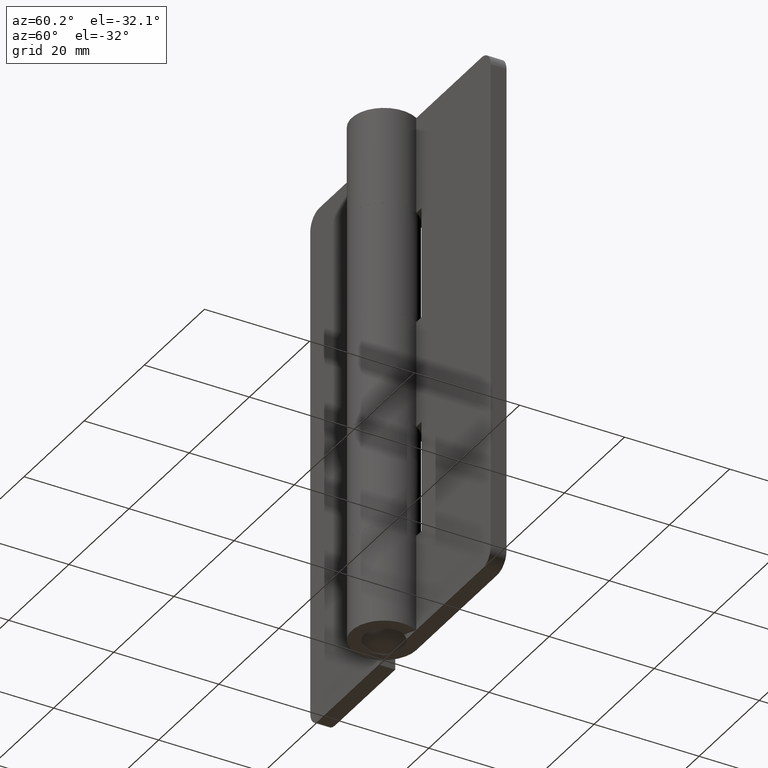
[diagram: clean part render]
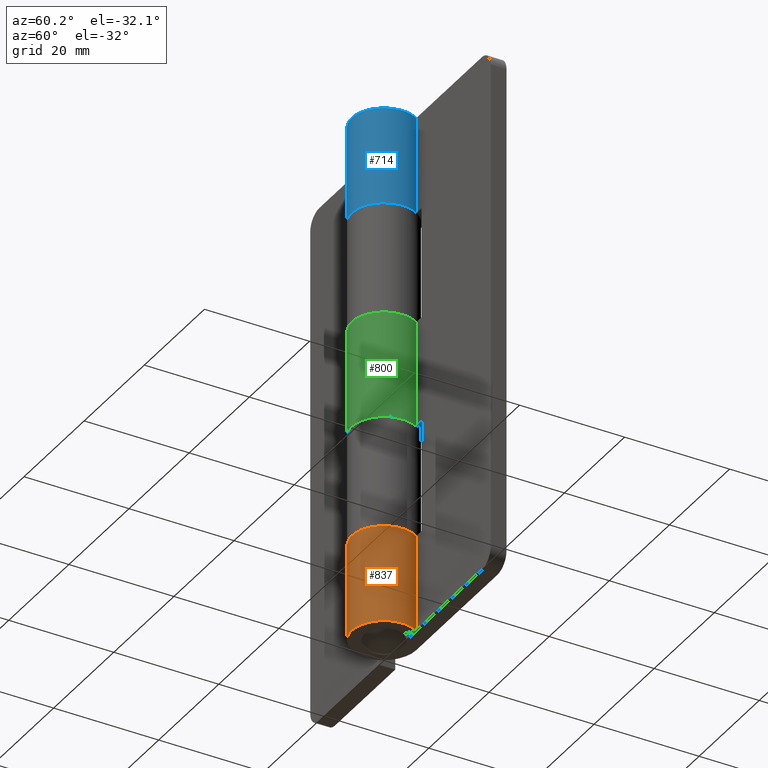
[diagram: same view with three faces highlighted in distinct colors, each labeled with its STEP entity id]
A machine part, auxiliary view with three faces highlighted in distinct colors.
Their STEP definitions:

[orange] entity #837 — the highlighted face is a freeform B-spline surface patch.
#258=CARTESIAN_POINT('',(0.0,6.150000000000000,18.500000000000000));
#259=VERTEX_POINT('',#258);
#265=CARTESIAN_POINT('',(5.311544031635240,3.100000000000000,18.500000000000000));
#266=VERTEX_POINT('',#265);
#267=CARTESIAN_POINT('',(5.311544031635243,3.100000000000005,18.500000000000000));
#268=CARTESIAN_POINT('',(7.693152769405606,-0.980651508643380,18.500000000000004));
#269=CARTESIAN_POINT('',(4.364009819617648,-4.333349546745652,18.500000000000000));
#270=CARTESIAN_POINT('',(1.034866869829693,-7.686047584847921,18.500000000000004));
#271=CARTESIAN_POINT('',(-3.062474489689663,-5.333268228769301,18.500000000000000));
#272=CARTESIAN_POINT('',(-7.159815849209024,-2.980488872690681,18.500000000000004));
#273=CARTESIAN_POINT('',(-5.942310140296080,1.584755563654659,18.500000000000000));
#274=CARTESIAN_POINT('',(-4.724804431383133,6.150000000000000,18.500000000000004));
#275=CARTESIAN_POINT('',(0.0,6.150000000000000,18.500000000000000));
#283=(BOUNDED_CURVE()B_SPLINE_CURVE(2,(#267,#268,#269,#270,#271,#272,#273,#274,#275),.UNSPECIFIED.,.F.,.U.)B_SPLINE_CURVE_WITH_KNOTS((3,2,2,2,3),(0.0,0.250000000000000,0.500000000000000,0.750000000000000,1.0),.UNSPECIFIED.)CURVE()GEOMETRIC_REPRESENTATION_ITEM()RATIONAL_B_SPLINE_CURVE((1.0,0.792995533243587,1.0,0.792995533243587,1.0,0.792995533243587,1.0,0.792995533243587,1.0))REPRESENTATION_ITEM(''));
#284=EDGE_CURVE('',#266,#259,#283,.T.);
#523=CARTESIAN_POINT('',(-1.129699E-015,6.150000000000000,0.0));
#524=VERTEX_POINT('',#523);
#559=CARTESIAN_POINT('',(5.311544031635240,3.100000000000000,0.0));
#560=VERTEX_POINT('',#559);
#566=CARTESIAN_POINT('',(5.311544031635243,3.100000000000005,0.0));
#567=CARTESIAN_POINT('',(7.693152769405606,-0.980651508643380,0.0));
#568=CARTESIAN_POINT('',(4.364009819617648,-4.333349546745652,0.0));
#569=CARTESIAN_POINT('',(1.034866869829693,-7.686047584847921,0.0));
#570=CARTESIAN_POINT('',(-3.062474489689663,-5.333268228769301,0.0));
#571=CARTESIAN_POINT('',(-7.159815849209024,-2.980488872690681,0.0));
#572=CARTESIAN_POINT('',(-5.942310140296080,1.584755563654659,0.0));
#573=CARTESIAN_POINT('',(-4.724804431383133,6.150000000000000,0.0));
#574=CARTESIAN_POINT('',(0.0,6.150000000000000,0.0));
#582=(BOUNDED_CURVE()B_SPLINE_CURVE(2,(#566,#567,#568,#569,#570,#571,#572,#573,#574),.UNSPECIFIED.,.F.,.U.)B_SPLINE_CURVE_WITH_KNOTS((3,2,2,2,3),(0.0,0.250000000000000,0.500000000000000,0.750000000000000,1.0),.UNSPECIFIED.)CURVE()GEOMETRIC_REPRESENTATION_ITEM()RATIONAL_B_SPLINE_CURVE((1.0,0.792995533243587,1.0,0.792995533243587,1.0,0.792995533243587,1.0,0.792995533243587,1.0))REPRESENTATION_ITEM(''));
#583=EDGE_CURVE('',#560,#524,#582,.T.);
#801=CARTESIAN_POINT('',(0.053668193314994,6.149765826844651,18.962500000000009));
#802=CARTESIAN_POINT('',(0.053668193314994,6.149765826844651,-0.474062499999999));
#803=CARTESIAN_POINT('',(-7.450965397801827,6.215257772012407,18.962500000000006));
#804=CARTESIAN_POINT('',(-7.450965397801827,6.215257772012407,-0.474062499999999));
#805=CARTESIAN_POINT('',(-6.040395133394375,-1.155909439560690,18.962500000000009));
#806=CARTESIAN_POINT('',(-6.040395133394375,-1.155909439560690,-0.474062499999999));
#807=CARTESIAN_POINT('',(-4.629824868986923,-8.527076651133784,18.962500000000006));
#808=CARTESIAN_POINT('',(-4.629824868986923,-8.527076651133784,-0.474062499999999));
#809=CARTESIAN_POINT('',(2.320407750391538,-5.695455018865729,18.962500000000009));
#810=CARTESIAN_POINT('',(2.320407750391538,-5.695455018865729,-0.474062499999999));
#811=CARTESIAN_POINT('',(9.270640369769998,-2.863833386597676,18.962500000000006));
#812=CARTESIAN_POINT('',(9.270640369769998,-2.863833386597676,-0.474062499999999));
#813=CARTESIAN_POINT('',(5.128397805713084,3.394412459669150,18.962500000000009));
#814=CARTESIAN_POINT('',(5.128397805713084,3.394412459669150,-0.474062499999999));
#822=(BOUNDED_SURFACE()B_SPLINE_SURFACE(1,2,((#801,#803,#805,#807,#809,#811,#813),(#802,#804,#806,#808,#810,#812,#814)),.UNSPECIFIED.,.F.,.F.,.U.)B_SPLINE_SURFACE_WITH_KNOTS((2,2),(3,2,2,3),(0.0,19.436562500000001),(0.0,11.645881098428321,23.291762196856642,34.937643295284957),.UNSPECIFIED.)GEOMETRIC_REPRESENTATION_ITEM()RATIONAL_B_SPLINE_SURFACE(((1.0,0.633830967398710,1.0,0.633830967398710,1.0,0.633830967398710,1.0),(1.0,0.633830967398710,1.0,0.633830967398710,1.0,0.633830967398710,1.0)))REPRESENTATION_ITEM('')SURFACE());
#823=ORIENTED_EDGE('',*,*,#284,.T.);
#824=CARTESIAN_POINT('',(0.0,6.150000000000000,18.500000000000000));
#825=CARTESIAN_POINT('',(-1.129699E-015,6.150000000000000,0.0));
#826=QUASI_UNIFORM_CURVE('',1,(#824,#825),.UNSPECIFIED.,.F.,.U.);
#827=EDGE_CURVE('',#259,#524,#826,.T.);
#828=ORIENTED_EDGE('',*,*,#827,.T.);
#829=ORIENTED_EDGE('',*,*,#583,.F.);
#830=CARTESIAN_POINT('',(5.311544031635240,3.100000000000000,18.500000000000000));
#831=CARTESIAN_POINT('',(5.311544031635240,3.100000000000000,0.0));
#832=QUASI_UNIFORM_CURVE('',1,(#830,#831),.UNSPECIFIED.,.F.,.U.);
#833=EDGE_CURVE('',#266,#560,#832,.T.);
#834=ORIENTED_EDGE('',*,*,#833,.F.);
#835=EDGE_LOOP('',(#823,#828,#829,#834));
#836=FACE_OUTER_BOUND('',#835,.T.);
#837=ADVANCED_FACE('',(#836),#822,.T.);

[blue] entity #714 — the highlighted face is a freeform B-spline surface patch.
#448=CARTESIAN_POINT('',(5.311544031635240,3.100000000000000,81.500000000000000));
#449=VERTEX_POINT('',#448);
#455=CARTESIAN_POINT('',(0.0,6.150000000000000,81.500000000000000));
#456=VERTEX_POINT('',#455);
#457=CARTESIAN_POINT('',(0.0,6.150000000000000,81.500000000000000));
#458=CARTESIAN_POINT('',(-4.724804431383132,6.150000000000000,81.500000000000000));
#459=CARTESIAN_POINT('',(-5.942310140296078,1.584755563654662,81.500000000000000));
#460=CARTESIAN_POINT('',(-7.159815849209021,-2.980488872690673,81.500000000000000));
#461=CARTESIAN_POINT('',(-3.062474489689671,-5.333268228769296,81.500000000000000));
#462=CARTESIAN_POINT('',(1.034866869829682,-7.686047584847922,81.500000000000000));
#463=CARTESIAN_POINT('',(4.364009819617642,-4.333349546745659,81.500000000000000));
#464=CARTESIAN_POINT('',(7.693152769405606,-0.980651508643393,81.500000000000000));
#465=CARTESIAN_POINT('',(5.311544031635248,3.099999999999997,81.500000000000000));
#473=(BOUNDED_CURVE()B_SPLINE_CURVE(2,(#457,#458,#459,#460,#461,#462,#463,#464,#465),.UNSPECIFIED.,.F.,.U.)B_SPLINE_CURVE_WITH_KNOTS((3,2,2,2,3),(0.0,0.250000000000000,0.500000000000000,0.750000000000000,1.0),.UNSPECIFIED.)CURVE()GEOMETRIC_REPRESENTATION_ITEM()RATIONAL_B_SPLINE_CURVE((1.0,0.792995533243587,1.0,0.792995533243587,1.0,0.792995533243587,1.0,0.792995533243587,1.0))REPRESENTATION_ITEM(''));
#474=EDGE_CURVE('',#456,#449,#473,.T.);
#601=CARTESIAN_POINT('',(-1.129699E-015,6.150000000000000,100.0));
#602=VERTEX_POINT('',#601);
#608=CARTESIAN_POINT('',(5.311544031635240,3.100000000000000,100.0));
#609=VERTEX_POINT('',#608);
#610=CARTESIAN_POINT('',(5.311544031635243,3.100000000000005,100.0));
#611=CARTESIAN_POINT('',(7.693152769405606,-0.980651508643380,100.0));
#612=CARTESIAN_POINT('',(4.364009819617648,-4.333349546745652,100.0));
#613=CARTESIAN_POINT('',(1.034866869829693,-7.686047584847921,100.0));
#614=CARTESIAN_POINT('',(-3.062474489689663,-5.333268228769301,100.0));
#615=CARTESIAN_POINT('',(-7.159815849209024,-2.980488872690681,100.0));
#616=CARTESIAN_POINT('',(-5.942310140296080,1.584755563654659,100.0));
#617=CARTESIAN_POINT('',(-4.724804431383133,6.150000000000000,100.0));
#618=CARTESIAN_POINT('',(0.0,6.150000000000000,100.0));
#626=(BOUNDED_CURVE()B_SPLINE_CURVE(2,(#610,#611,#612,#613,#614,#615,#616,#617,#618),.UNSPECIFIED.,.F.,.U.)B_SPLINE_CURVE_WITH_KNOTS((3,2,2,2,3),(0.0,0.250000000000000,0.500000000000000,0.750000000000000,1.0),.UNSPECIFIED.)CURVE()GEOMETRIC_REPRESENTATION_ITEM()RATIONAL_B_SPLINE_CURVE((1.0,0.792995533243587,1.0,0.792995533243587,1.0,0.792995533243587,1.0,0.792995533243587,1.0))REPRESENTATION_ITEM(''));
#627=EDGE_CURVE('',#609,#602,#626,.T.);
#678=CARTESIAN_POINT('',(0.160988232093428,6.147892548599675,100.462500000000010));
#679=CARTESIAN_POINT('',(0.160988232093428,6.147892548599675,81.025937499999984));
#680=CARTESIAN_POINT('',(-7.386032988583672,6.345518254365325,100.462500000000020));
#681=CARTESIAN_POINT('',(-7.386032988583672,6.345518254365325,81.025937499999984));
#682=CARTESIAN_POINT('',(-6.053435560561366,-1.085549590820735,100.462500000000010));
#683=CARTESIAN_POINT('',(-6.053435560561366,-1.085549590820735,81.025937499999984));
#684=CARTESIAN_POINT('',(-4.720838132539059,-8.516617436006793,100.462500000000020));
#685=CARTESIAN_POINT('',(-4.720838132539059,-8.516617436006793,81.025937499999984));
#686=CARTESIAN_POINT('',(2.287233854556865,-5.708858142796062,100.462500000000010));
#687=CARTESIAN_POINT('',(2.287233854556865,-5.708858142796062,81.025937499999984));
#688=CARTESIAN_POINT('',(9.295305841652787,-2.901098849585333,100.462500000000020));
#689=CARTESIAN_POINT('',(9.295305841652787,-2.901098849585333,81.025937499999984));
#690=CARTESIAN_POINT('',(5.128397805713090,3.394412459669143,100.462500000000010));
#691=CARTESIAN_POINT('',(5.128397805713090,3.394412459669143,81.025937499999984));
#699=(BOUNDED_SURFACE()B_SPLINE_SURFACE(1,2,((#678,#680,#682,#684,#686,#688,#690),(#679,#681,#683,#685,#687,#689,#691)),.UNSPECIFIED.,.F.,.F.,.U.)B_SPLINE_SURFACE_WITH_KNOTS((2,2),(3,2,2,3),(0.0,19.436562500000040),(0.0,11.689709289105380,23.379418578210760,35.069127867316134),.UNSPECIFIED.)GEOMETRIC_REPRESENTATION_ITEM()RATIONAL_B_SPLINE_SURFACE(((1.0,0.631578351302498,1.0,0.631578351302498,1.0,0.631578351302498,1.0),(1.0,0.631578351302498,1.0,0.631578351302498,1.0,0.631578351302498,1.0)))REPRESENTATION_ITEM('')SURFACE());
#700=ORIENTED_EDGE('',*,*,#474,.T.);
#701=CARTESIAN_POINT('',(5.311544031635240,3.100000000000000,100.0));
#702=CARTESIAN_POINT('',(5.311544031635240,3.100000000000000,81.500000000000000));
#703=QUASI_UNIFORM_CURVE('',1,(#701,#702),.UNSPECIFIED.,.F.,.U.);
#704=EDGE_CURVE('',#609,#449,#703,.T.);
#705=ORIENTED_EDGE('',*,*,#704,.F.);
#706=ORIENTED_EDGE('',*,*,#627,.T.);
#707=CARTESIAN_POINT('',(-1.129699E-015,6.150000000000000,100.0));
#708=CARTESIAN_POINT('',(0.0,6.150000000000000,81.500000000000000));
#709=QUASI_UNIFORM_CURVE('',1,(#707,#708),.UNSPECIFIED.,.F.,.U.);
#710=EDGE_CURVE('',#602,#456,#709,.T.);
#711=ORIENTED_EDGE('',*,*,#710,.T.);
#712=EDGE_LOOP('',(#700,#705,#706,#711));
#713=FACE_OUTER_BOUND('',#712,.T.);
#714=ADVANCED_FACE('',(#713),#699,.T.);

[green] entity #800 — the highlighted face is a freeform B-spline surface patch.
#194=CARTESIAN_POINT('',(5.311544031635240,3.100000000000000,39.799999999999997));
#195=VERTEX_POINT('',#194);
#201=CARTESIAN_POINT('',(0.0,6.150000000000000,39.799999999999997));
#202=VERTEX_POINT('',#201);
#203=CARTESIAN_POINT('',(0.0,6.150000000000000,39.799999999999997));
#204=CARTESIAN_POINT('',(-4.724804431383132,6.150000000000000,39.800000000000004));
#205=CARTESIAN_POINT('',(-5.942310140296078,1.584755563654662,39.799999999999997));
#206=CARTESIAN_POINT('',(-7.159815849209021,-2.980488872690673,39.800000000000004));
#207=CARTESIAN_POINT('',(-3.062474489689671,-5.333268228769296,39.799999999999997));
#208=CARTESIAN_POINT('',(1.034866869829682,-7.686047584847922,39.800000000000004));
#209=CARTESIAN_POINT('',(4.364009819617642,-4.333349546745659,39.799999999999997));
#210=CARTESIAN_POINT('',(7.693152769405606,-0.980651508643393,39.800000000000004));
#211=CARTESIAN_POINT('',(5.311544031635248,3.099999999999997,39.799999999999997));
#219=(BOUNDED_CURVE()B_SPLINE_CURVE(2,(#203,#204,#205,#206,#207,#208,#209,#210,#211),.UNSPECIFIED.,.F.,.U.)B_SPLINE_CURVE_WITH_KNOTS((3,2,2,2,3),(0.0,0.250000000000000,0.500000000000000,0.750000000000000,1.0),.UNSPECIFIED.)CURVE()GEOMETRIC_REPRESENTATION_ITEM()RATIONAL_B_SPLINE_CURVE((1.0,0.792995533243587,1.0,0.792995533243587,1.0,0.792995533243587,1.0,0.792995533243587,1.0))REPRESENTATION_ITEM(''));
#220=EDGE_CURVE('',#202,#195,#219,.T.);
#356=CARTESIAN_POINT('',(0.0,6.150000000000000,60.200000000000003));
#357=VERTEX_POINT('',#356);
#363=CARTESIAN_POINT('',(5.311544031635240,3.100000000000000,60.200000000000003));
#364=VERTEX_POINT('',#363);
#365=CARTESIAN_POINT('',(5.311544031635243,3.100000000000005,60.200000000000003));
#366=CARTESIAN_POINT('',(7.693152769405606,-0.980651508643380,60.199999999999996));
#367=CARTESIAN_POINT('',(4.364009819617648,-4.333349546745652,60.200000000000003));
#368=CARTESIAN_POINT('',(1.034866869829693,-7.686047584847921,60.199999999999996));
#369=CARTESIAN_POINT('',(-3.062474489689663,-5.333268228769301,60.200000000000003));
#370=CARTESIAN_POINT('',(-7.159815849209024,-2.980488872690681,60.199999999999996));
#371=CARTESIAN_POINT('',(-5.942310140296080,1.584755563654659,60.200000000000003));
#372=CARTESIAN_POINT('',(-4.724804431383133,6.150000000000000,60.199999999999996));
#373=CARTESIAN_POINT('',(0.0,6.150000000000000,60.200000000000003));
#381=(BOUNDED_CURVE()B_SPLINE_CURVE(2,(#365,#366,#367,#368,#369,#370,#371,#372,#373),.UNSPECIFIED.,.F.,.U.)B_SPLINE_CURVE_WITH_KNOTS((3,2,2,2,3),(0.0,0.250000000000000,0.500000000000000,0.750000000000000,1.0),.UNSPECIFIED.)CURVE()GEOMETRIC_REPRESENTATION_ITEM()RATIONAL_B_SPLINE_CURVE((1.0,0.792995533243587,1.0,0.792995533243587,1.0,0.792995533243587,1.0,0.792995533243587,1.0))REPRESENTATION_ITEM(''));
#382=EDGE_CURVE('',#364,#357,#381,.T.);
#764=CARTESIAN_POINT('',(0.053668193314994,6.149765826844651,60.710000000000001));
#765=CARTESIAN_POINT('',(0.053668193314994,6.149765826844651,39.277250000000002));
#766=CARTESIAN_POINT('',(-7.450965397801827,6.215257772012407,60.710000000000015));
#767=CARTESIAN_POINT('',(-7.450965397801827,6.215257772012407,39.277249999999995));
#768=CARTESIAN_POINT('',(-6.040395133394375,-1.155909439560690,60.710000000000001));
#769=CARTESIAN_POINT('',(-6.040395133394375,-1.155909439560690,39.277250000000002));
#770=CARTESIAN_POINT('',(-4.629824868986923,-8.527076651133784,60.710000000000015));
#771=CARTESIAN_POINT('',(-4.629824868986923,-8.527076651133784,39.277249999999995));
#772=CARTESIAN_POINT('',(2.320407750391538,-5.695455018865729,60.710000000000001));
#773=CARTESIAN_POINT('',(2.320407750391538,-5.695455018865729,39.277250000000002));
#774=CARTESIAN_POINT('',(9.270640369769998,-2.863833386597676,60.710000000000015));
#775=CARTESIAN_POINT('',(9.270640369769998,-2.863833386597676,39.277249999999995));
#776=CARTESIAN_POINT('',(5.128397805713084,3.394412459669150,60.710000000000001));
#777=CARTESIAN_POINT('',(5.128397805713084,3.394412459669150,39.277250000000002));
#785=(BOUNDED_SURFACE()B_SPLINE_SURFACE(1,2,((#764,#766,#768,#770,#772,#774,#776),(#765,#767,#769,#771,#773,#775,#777)),.UNSPECIFIED.,.F.,.F.,.U.)B_SPLINE_SURFACE_WITH_KNOTS((2,2),(3,2,2,3),(0.0,21.432750000000009),(0.0,11.645881098428321,23.291762196856642,34.937643295284957),.UNSPECIFIED.)GEOMETRIC_REPRESENTATION_ITEM()RATIONAL_B_SPLINE_SURFACE(((1.0,0.633830967398710,1.0,0.633830967398710,1.0,0.633830967398710,1.0),(1.0,0.633830967398710,1.0,0.633830967398710,1.0,0.633830967398710,1.0)))REPRESENTATION_ITEM('')SURFACE());
#786=ORIENTED_EDGE('',*,*,#220,.T.);
#787=CARTESIAN_POINT('',(5.311544031635240,3.100000000000000,60.200000000000003));
#788=CARTESIAN_POINT('',(5.311544031635240,3.100000000000000,39.799999999999997));
#789=QUASI_UNIFORM_CURVE('',1,(#787,#788),.UNSPECIFIED.,.F.,.U.);
#790=EDGE_CURVE('',#364,#195,#789,.T.);
#791=ORIENTED_EDGE('',*,*,#790,.F.);
#792=ORIENTED_EDGE('',*,*,#382,.T.);
#793=CARTESIAN_POINT('',(0.0,6.150000000000000,60.200000000000003));
#794=CARTESIAN_POINT('',(0.0,6.150000000000000,39.799999999999997));
#795=QUASI_UNIFORM_CURVE('',1,(#793,#794),.UNSPECIFIED.,.F.,.U.);
#796=EDGE_CURVE('',#357,#202,#795,.T.);
#797=ORIENTED_EDGE('',*,*,#796,.T.);
#798=EDGE_LOOP('',(#786,#791,#792,#797));
#799=FACE_OUTER_BOUND('',#798,.T.);
#800=ADVANCED_FACE('',(#799),#785,.T.);